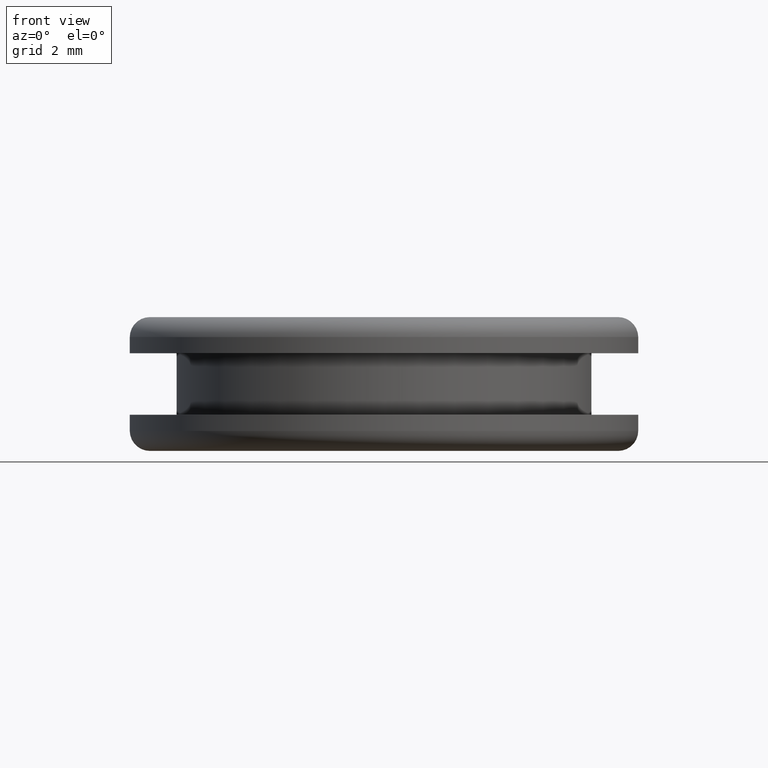
[diagram: clean part render]
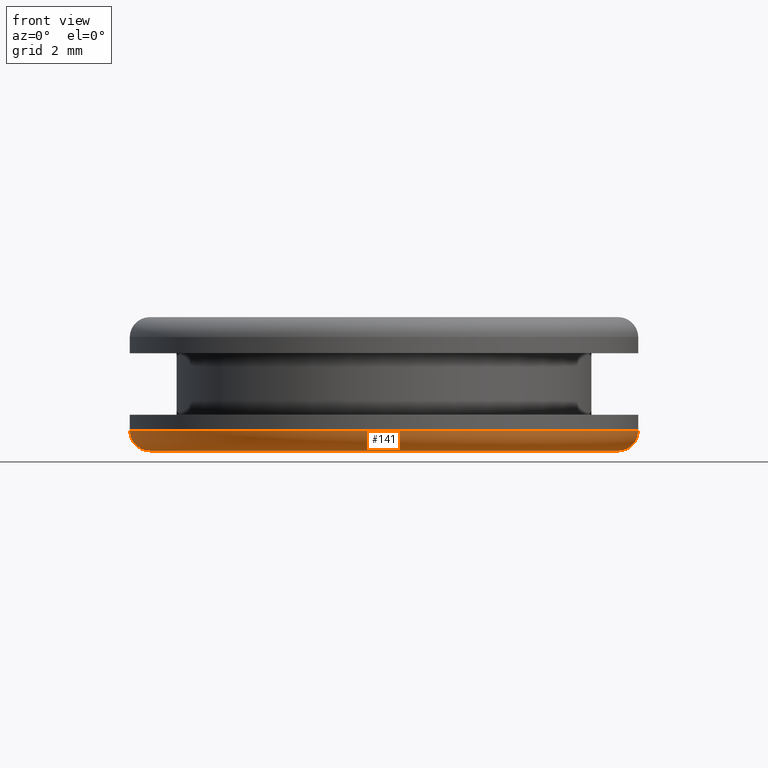
[diagram: same view with one face highlighted and labeled with its STEP entity id]
A machine part, front view. The second image highlights one B-rep face of the part: STEP entity #141.
In plain terms, the highlighted toroidal blend (fillet) surface has major radius 8.75 mm and minor (blend) radius 0.75 mm.
Its self-contained STEP definition (entity closure, byte-faithful):
#14 = EDGE_CURVE ( 'NONE', #354, #384, #181, .T. ) ;
#33 = CARTESIAN_POINT ( 'NONE',  ( 114.8108550661924900, 1.071565949238759400E-015, 138.4502122310740000 ) ) ;
#35 = CARTESIAN_POINT ( 'NONE',  ( 97.31085506644029700, 0.0000000000000000000, 138.4502122310740000 ) ) ;
#53 = FACE_OUTER_BOUND ( 'NONE', #239, .T. ) ;
#69 = DIRECTION ( 'NONE',  ( -1.000000000000000000, 0.0000000000000000000, 0.0000000000000000000 ) ) ;
#71 = DIRECTION ( 'NONE',  ( -1.224646799147353200E-016, 1.000000000000000000, 0.0000000000000000000 ) ) ;
#105 = DIRECTION ( 'NONE',  ( 0.0000000000000000000, 0.0000000000000000000, -1.000000000000000000 ) ) ;
#121 = DIRECTION ( 'NONE',  ( 0.0000000000000000000, 0.0000000000000000000, -1.000000000000000000 ) ) ;
#141 = ADVANCED_FACE ( 'NONE', ( #53 ), #250, .T. ) ;
#161 = CARTESIAN_POINT ( 'NONE',  ( 97.31085506644029700, 0.0000000000000000000, 137.7002122310740000 ) ) ;
#166 = EDGE_CURVE ( 'NONE', #236, #437, #443, .T. ) ;
#170 = AXIS2_PLACEMENT_3D ( 'NONE', #326, #105, #69 ) ;
#174 = AXIS2_PLACEMENT_3D ( 'NONE', #344, #121, #383 ) ;
#176 = AXIS2_PLACEMENT_3D ( 'NONE', #35, #294, #333 ) ;
#181 = CIRCLE ( 'NONE', #176, 0.7500000000000006700 ) ;
#198 = CARTESIAN_POINT ( 'NONE',  ( 96.56085506644029700, 0.0000000000000000000, 138.4502122310740000 ) ) ;
#205 = DIRECTION ( 'NONE',  ( 0.0000000000000000000, 0.0000000000000000000, -1.000000000000000000 ) ) ;
#214 = CIRCLE ( 'NONE', #432, 8.749999999876093800 ) ;
#236 = VERTEX_POINT ( 'NONE', #408 ) ;
#239 = EDGE_LOOP ( 'NONE', ( #392, #288, #252, #324 ) ) ;
#250 = TOROIDAL_SURFACE ( 'NONE', #170, 8.749999999876090200, 0.7500000000000000000 ) ;
#252 = ORIENTED_EDGE ( 'NONE', *, *, #14, .T. ) ;
#288 = ORIENTED_EDGE ( 'NONE', *, *, #351, .T. ) ;
#294 = DIRECTION ( 'NONE',  ( -0.0000000000000000000, -1.000000000000000000, -0.0000000000000000000 ) ) ;
#297 = CIRCLE ( 'NONE', #174, 9.499999999876093800 ) ;
#324 = ORIENTED_EDGE ( 'NONE', *, *, #466, .F. ) ;
#326 = CARTESIAN_POINT ( 'NONE',  ( 106.0608550663163900, 0.0000000000000000000, 138.4502122310740000 ) ) ;
#333 = DIRECTION ( 'NONE',  ( 0.0000000000000000000, 0.0000000000000000000, -1.000000000000000000 ) ) ;
#335 = DIRECTION ( 'NONE',  ( -1.000000000000000000, -1.224646799147352000E-016, 0.0000000000000000000 ) ) ;
#344 = CARTESIAN_POINT ( 'NONE',  ( 106.0608550663163900, 0.0000000000000000000, 138.4502122310740000 ) ) ;
#348 = CARTESIAN_POINT ( 'NONE',  ( 114.8108550661924900, 1.117490204206784700E-015, 137.7002122310740000 ) ) ;
#351 = EDGE_CURVE ( 'NONE', #236, #354, #297, .T. ) ;
#354 = VERTEX_POINT ( 'NONE', #198 ) ;
#383 = DIRECTION ( 'NONE',  ( -1.000000000000000000, 0.0000000000000000000, 0.0000000000000000000 ) ) ;
#384 = VERTEX_POINT ( 'NONE', #161 ) ;
#392 = ORIENTED_EDGE ( 'NONE', *, *, #166, .F. ) ;
#408 = CARTESIAN_POINT ( 'NONE',  ( 115.5608550661924900, 1.163414459174820000E-015, 138.4502122310740000 ) ) ;
#413 = AXIS2_PLACEMENT_3D ( 'NONE', #33, #71, #335 ) ;
#426 = CARTESIAN_POINT ( 'NONE',  ( 106.0608550663163900, 0.0000000000000000000, 137.7002122310740000 ) ) ;
#432 = AXIS2_PLACEMENT_3D ( 'NONE', #426, #205, #458 ) ;
#437 = VERTEX_POINT ( 'NONE', #348 ) ;
#443 = CIRCLE ( 'NONE', #413, 0.7500000000000006700 ) ;
#458 = DIRECTION ( 'NONE',  ( -1.000000000000000000, 0.0000000000000000000, 0.0000000000000000000 ) ) ;
#466 = EDGE_CURVE ( 'NONE', #437, #384, #214, .T. ) ;